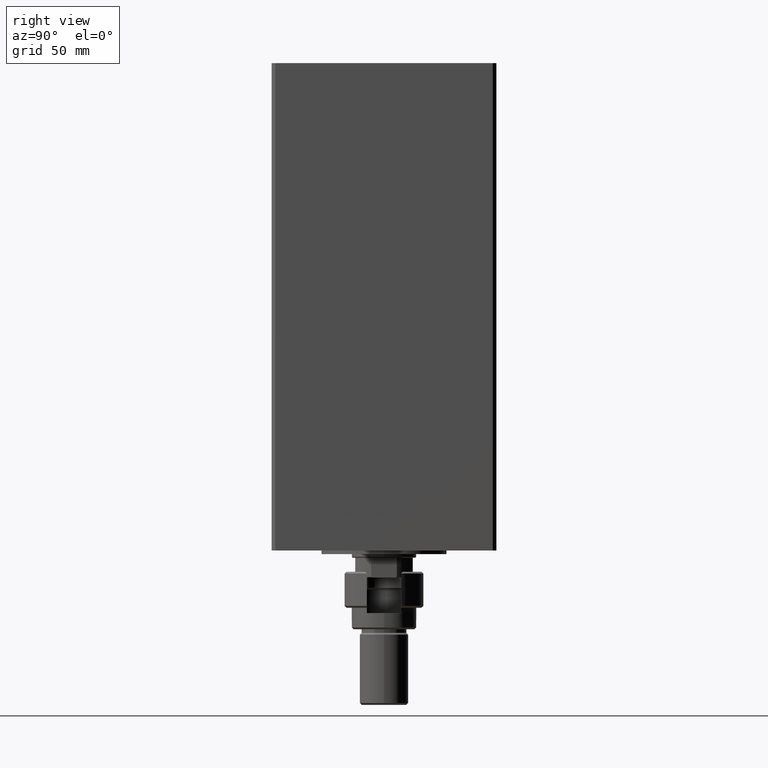
[diagram: clean part render]
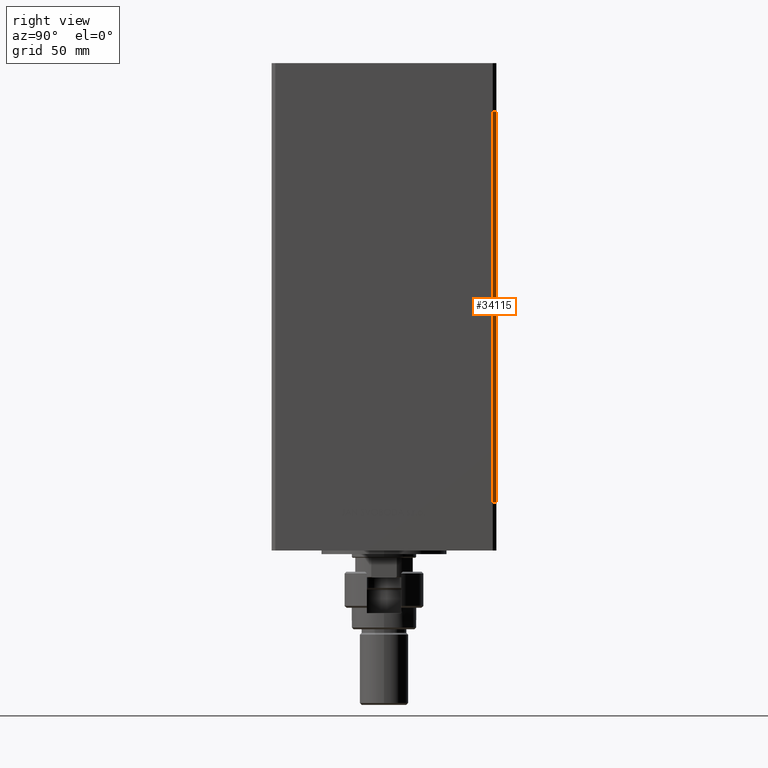
[diagram: same view with one face highlighted and labeled with its STEP entity id]
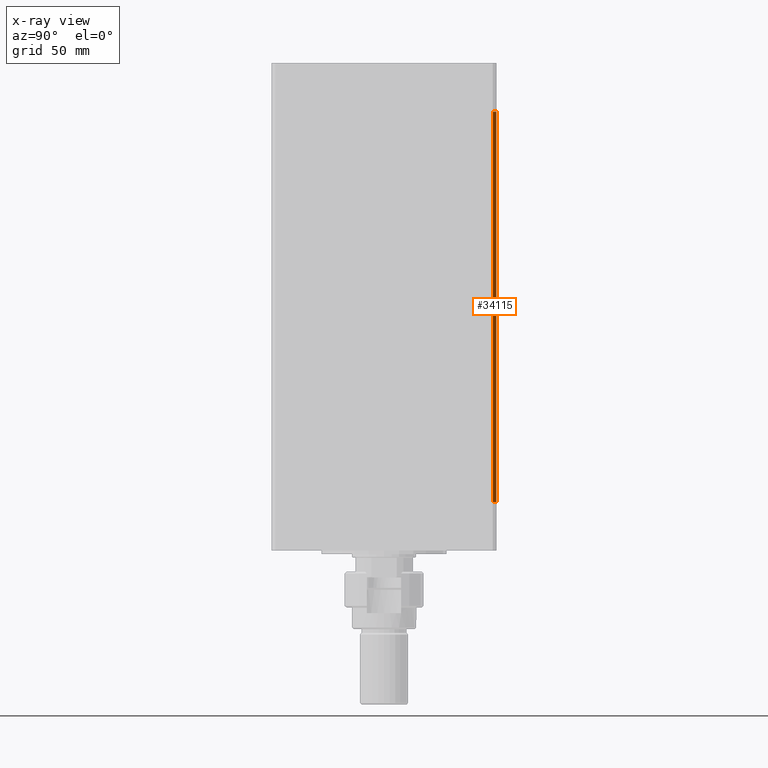
[diagram: x-ray of the same camera — body ghosted, the highlighted face saturated]
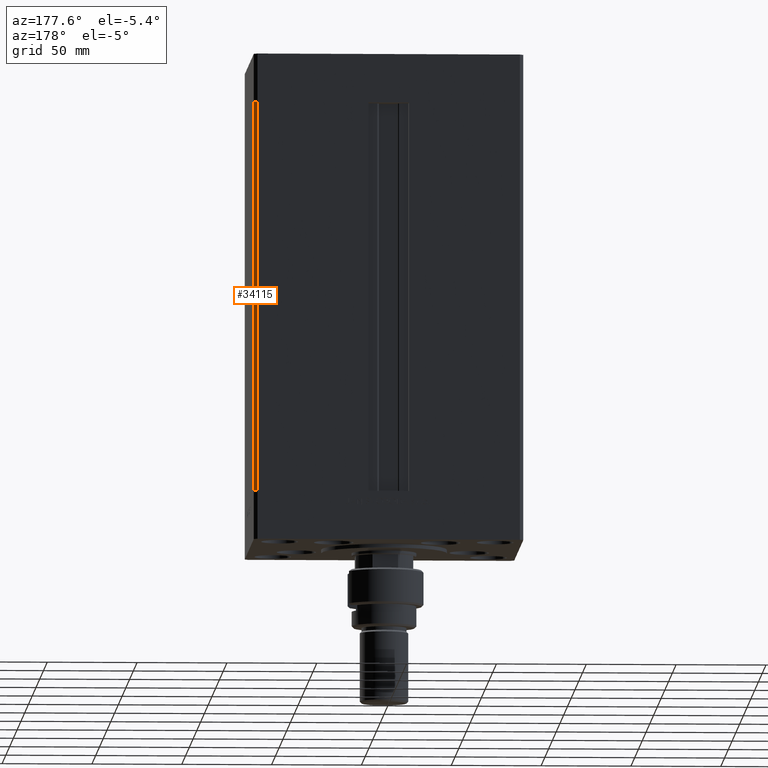
[diagram: same view with one face highlighted and labeled with its STEP entity id]
A machine part, right view. The second image highlights one B-rep face of the part: STEP entity #34115.
The next image is the same camera in x-ray: the body ghosted, the highlighted face saturated — about 0% of this face is hidden behind the body in this view.
A second angle (auxiliary view) of the same face is appended — the face is thin or edge-on in the first view.
In plain terms, the highlighted planar face has unit normal (0.7071, 0.7071, 0).
Its self-contained STEP definition (entity closure, byte-faithful):
#84 = VECTOR ( 'NONE', #36830, 1000.000000000000000 ) ;
#426 = DIRECTION ( 'NONE',  ( 0.7071067811865474617, -0.7071067811865474617, 0.000000000000000000 ) ) ;
#1876 = CARTESIAN_POINT ( 'NONE',  ( 75.00000000000001421, 60.50000000000000000, 217.0000000000000000 ) ) ;
#3506 = EDGE_LOOP ( 'NONE', ( #39242, #22752, #12403, #27840 ) ) ;
#5757 = CARTESIAN_POINT ( 'NONE',  ( 75.00000000000001421, 60.50000000000000000, 0.000000000000000000 ) ) ;
#6510 = VERTEX_POINT ( 'NONE', #12941 ) ;
#8524 = CARTESIAN_POINT ( 'NONE',  ( 73.00000000000001421, 62.50000000000000000, 0.000000000000000000 ) ) ;
#10378 = PLANE ( 'NONE',  #45866 ) ;
#10490 = VECTOR ( 'NONE', #31736, 1000.000000000000000 ) ;
#11775 = DIRECTION ( 'NONE',  ( 0.7071067811865474617, -0.7071067811865474617, 0.000000000000000000 ) ) ;
#12403 = ORIENTED_EDGE ( 'NONE', *, *, #15147, .T. ) ;
#12941 = CARTESIAN_POINT ( 'NONE',  ( 73.00000000000001421, 62.50000000000000000, 0.000000000000000000 ) ) ;
#13993 = LINE ( 'NONE', #1876, #84 ) ;
#15147 = EDGE_CURVE ( 'NONE', #18598, #32739, #46508, .T. ) ;
#17731 = CARTESIAN_POINT ( 'NONE',  ( 75.00000000000001421, 60.50000000000000000, 217.0000000000000000 ) ) ;
#18000 = CARTESIAN_POINT ( 'NONE',  ( 73.00000000000001421, 62.50000000000000000, 217.0000000000000000 ) ) ;
#18598 = VERTEX_POINT ( 'NONE', #50025 ) ;
#19671 = LINE ( 'NONE', #8524, #47440 ) ;
#22752 = ORIENTED_EDGE ( 'NONE', *, *, #39293, .F. ) ;
#27840 = ORIENTED_EDGE ( 'NONE', *, *, #42352, .T. ) ;
#28183 = LINE ( 'NONE', #39848, #10490 ) ;
#29030 = EDGE_CURVE ( 'NONE', #6510, #40811, #19671, .T. ) ;
#31551 = CARTESIAN_POINT ( 'NONE',  ( 73.00000000000001421, 62.50000000000000000, 217.0000000000000000 ) ) ;
#31736 = DIRECTION ( 'NONE',  ( -0.000000000000000000, -0.000000000000000000, -1.000000000000000000 ) ) ;
#32739 = VERTEX_POINT ( 'NONE', #17731 ) ;
#34115 = ADVANCED_FACE ( 'NONE', ( #48669 ), #10378, .T. ) ;
#36766 = DIRECTION ( 'NONE',  ( -0.7071067811865474617, 0.7071067811865474617, 0.000000000000000000 ) ) ;
#36830 = DIRECTION ( 'NONE',  ( -0.000000000000000000, -0.000000000000000000, -1.000000000000000000 ) ) ;
#39242 = ORIENTED_EDGE ( 'NONE', *, *, #29030, .F. ) ;
#39293 = EDGE_CURVE ( 'NONE', #18598, #6510, #28183, .T. ) ;
#39848 = CARTESIAN_POINT ( 'NONE',  ( 73.00000000000001421, 62.50000000000000000, 217.0000000000000000 ) ) ;
#40811 = VERTEX_POINT ( 'NONE', #5757 ) ;
#42352 = EDGE_CURVE ( 'NONE', #32739, #40811, #13993, .T. ) ;
#43017 = VECTOR ( 'NONE', #11775, 1000.000000000000114 ) ;
#45607 = DIRECTION ( 'NONE',  ( 0.7071067811865475727, 0.7071067811865475727, -0.000000000000000000 ) ) ;
#45866 = AXIS2_PLACEMENT_3D ( 'NONE', #18000, #45607, #36766 ) ;
#46508 = LINE ( 'NONE', #31551, #43017 ) ;
#47440 = VECTOR ( 'NONE', #426, 1000.000000000000114 ) ;
#48669 = FACE_OUTER_BOUND ( 'NONE', #3506, .T. ) ;
#50025 = CARTESIAN_POINT ( 'NONE',  ( 73.00000000000001421, 62.50000000000000000, 217.0000000000000000 ) ) ;